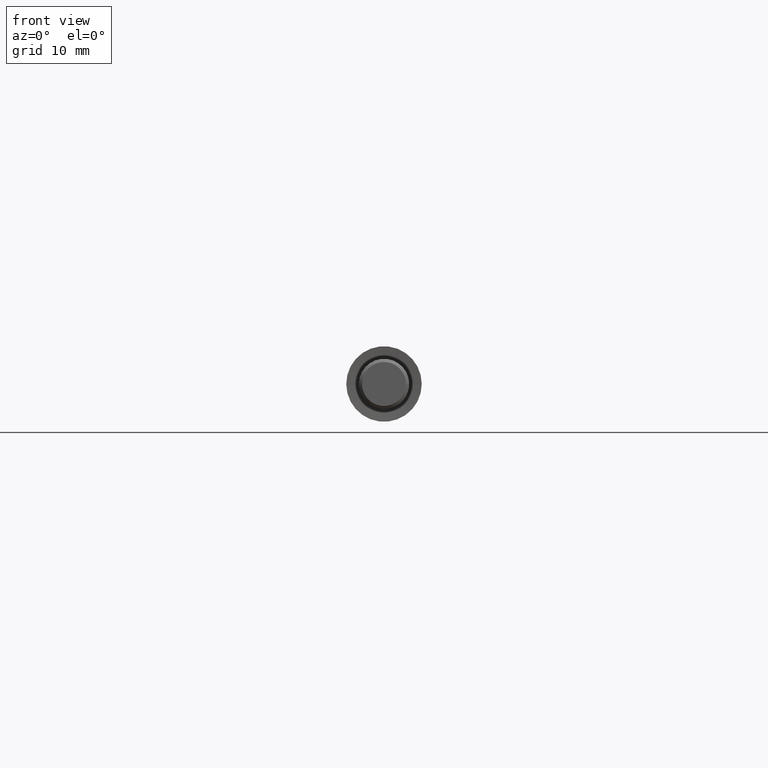
[diagram: clean part render]
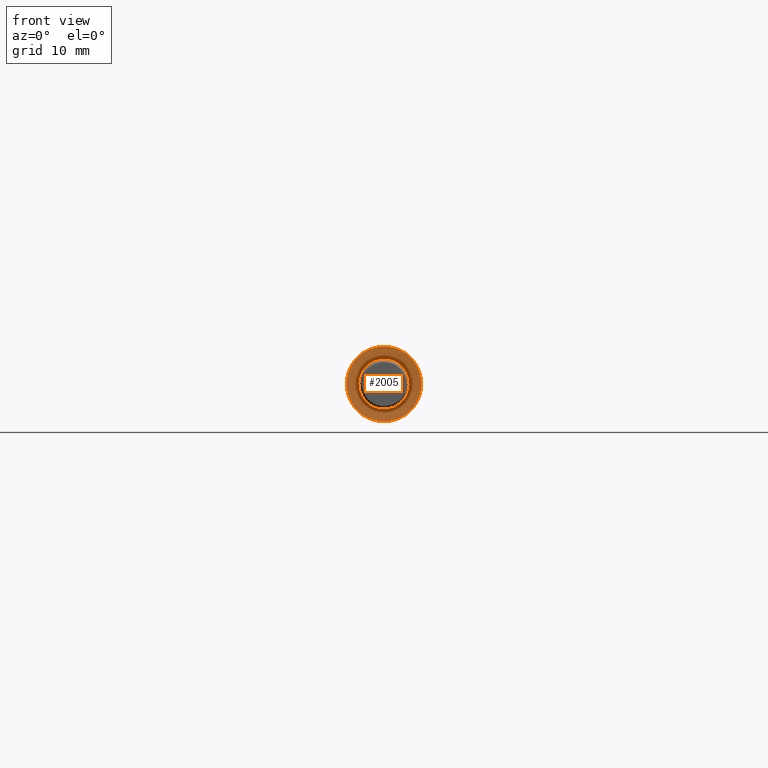
[diagram: same view with one face highlighted and labeled with its STEP entity id]
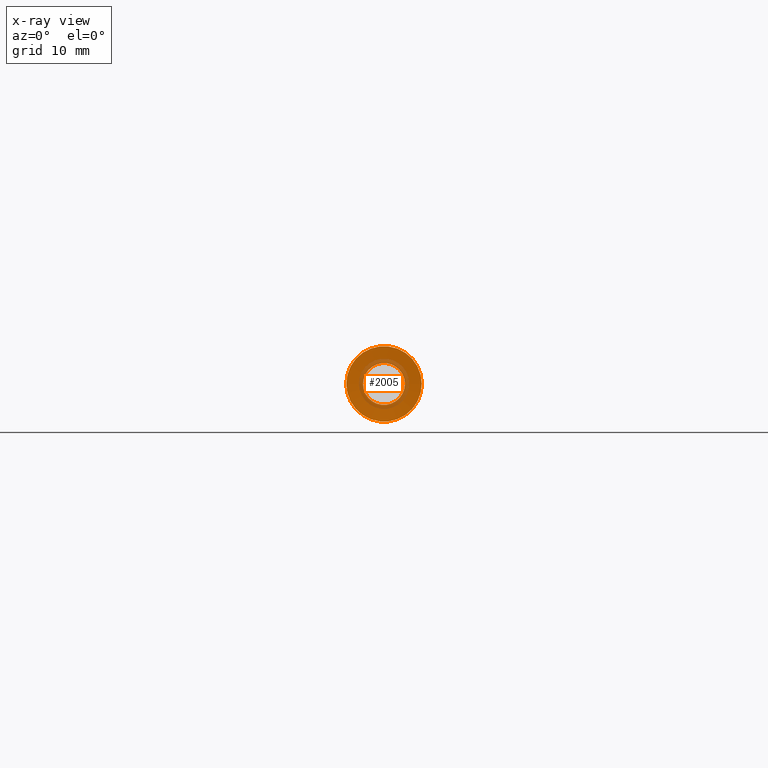
[diagram: x-ray of the same camera — body ghosted, the highlighted face saturated]
A machine part, front view. The second image highlights one B-rep face of the part: STEP entity #2005.
The next image is the same camera in x-ray: the body ghosted, the highlighted face saturated — about 20% of this face is hidden behind the body in this view.
In plain terms, the highlighted conical surface has half-angle 85 deg.
Its self-contained STEP definition (entity closure, byte-faithful):
#1107 = CIRCLE ( 'NONE', #13151, 3.320072066050799187 ) ;
#1774 = DIRECTION ( 'NONE',  ( 1.000000000000000000, 0.000000000000000000, 0.000000000000000000 ) ) ;
#2005 = ADVANCED_FACE ( 'NONE', ( #9314, #5036 ), #12788, .F. ) ;
#2846 = EDGE_LOOP ( 'NONE', ( #12705 ) ) ;
#2977 = CARTESIAN_POINT ( 'NONE',  ( 1.670795082806990459E-31, 0.2344633132870081738, 0.000000000000000000 ) ) ;
#3061 = EDGE_CURVE ( 'NONE', #11128, #11128, #1107, .T. ) ;
#3661 = EDGE_CURVE ( 'NONE', #6356, #6356, #12930, .T. ) ;
#3854 = DIRECTION ( 'NONE',  ( 1.674721690771509348E-33, -1.000000000000000000, -0.000000000000000000 ) ) ;
#5036 = FACE_BOUND ( 'NONE', #13180, .T. ) ;
#5904 = CARTESIAN_POINT ( 'NONE',  ( 6.000000000000009770, 1.004833014462907251E-32, 0.000000000000000000 ) ) ;
#6356 = VERTEX_POINT ( 'NONE', #5904 ) ;
#6473 = DIRECTION ( 'NONE',  ( 1.674721690771509348E-33, -1.000000000000000000, -0.000000000000000000 ) ) ;
#7321 = AXIS2_PLACEMENT_3D ( 'NONE', #8021, #8975, #11017 ) ;
#7539 = DIRECTION ( 'NONE',  ( 1.000000000000000000, 0.000000000000000000, 0.000000000000000000 ) ) ;
#8021 = CARTESIAN_POINT ( 'NONE',  ( 1.674721690771509485E-31, 0.000000000000000000, 0.000000000000000000 ) ) ;
#8975 = DIRECTION ( 'NONE',  ( 1.674721690771509348E-33, -1.000000000000000000, -0.000000000000000000 ) ) ;
#9314 = FACE_OUTER_BOUND ( 'NONE', #2846, .T. ) ;
#9461 = CARTESIAN_POINT ( 'NONE',  ( 3.320072066050799187, 0.2344633132870081738, 0.000000000000000000 ) ) ;
#11017 = DIRECTION ( 'NONE',  ( 1.000000000000000000, 1.674721690771509348E-33, 0.000000000000000000 ) ) ;
#11128 = VERTEX_POINT ( 'NONE', #9461 ) ;
#11830 = CARTESIAN_POINT ( 'NONE',  ( 1.670795082806990459E-31, 0.2344633132870081738, 0.000000000000000000 ) ) ;
#12007 = ORIENTED_EDGE ( 'NONE', *, *, #3061, .F. ) ;
#12420 = AXIS2_PLACEMENT_3D ( 'NONE', #11830, #6473, #7539 ) ;
#12705 = ORIENTED_EDGE ( 'NONE', *, *, #3661, .T. ) ;
#12788 = CONICAL_SURFACE ( 'NONE', #12420, 3.320072066050799187, 1.483529864195179737 ) ;
#12930 = CIRCLE ( 'NONE', #7321, 6.000000000000009770 ) ;
#13151 = AXIS2_PLACEMENT_3D ( 'NONE', #2977, #3854, #1774 ) ;
#13180 = EDGE_LOOP ( 'NONE', ( #12007 ) ) ;